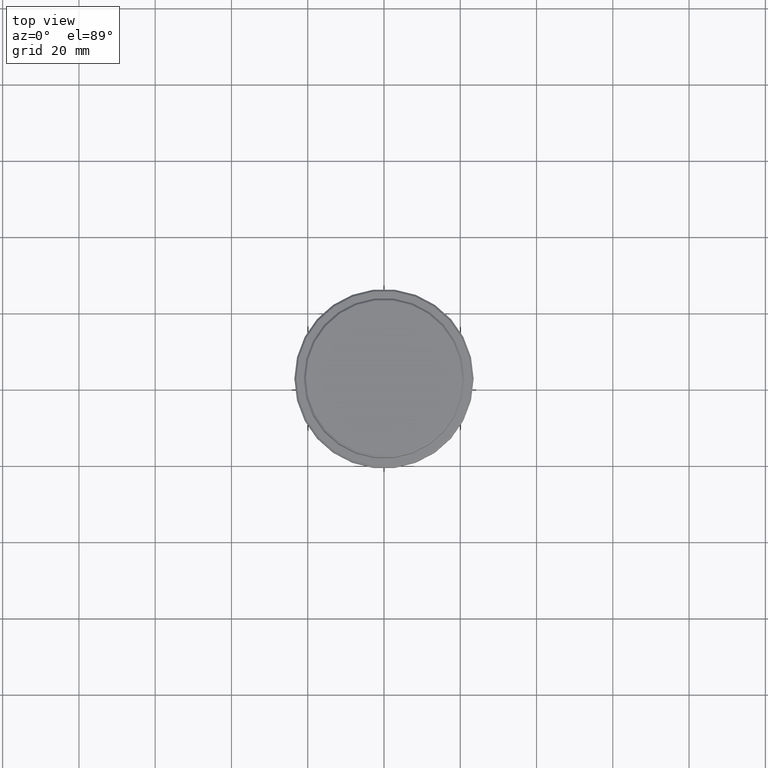
[diagram: clean part render]
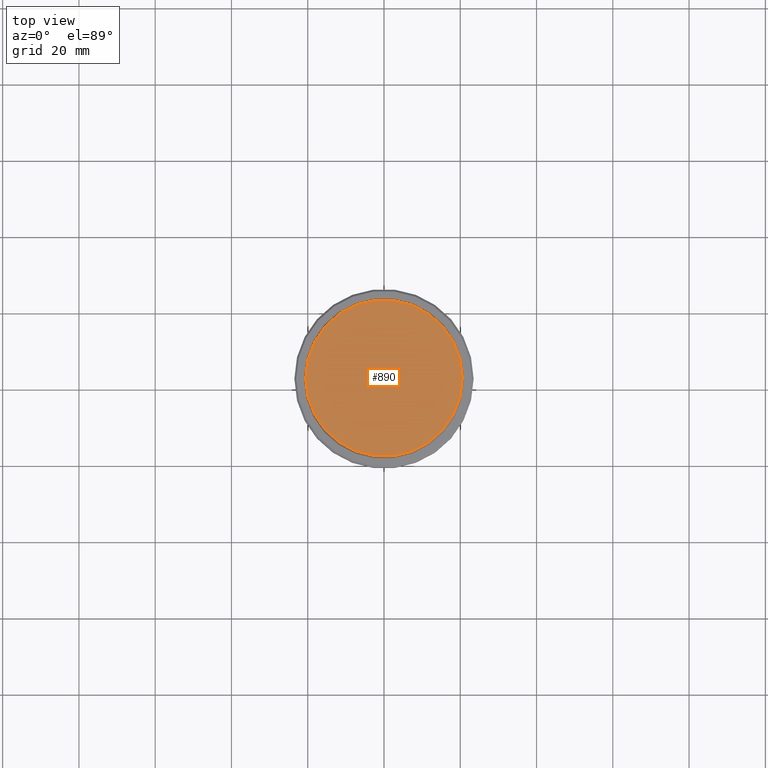
[diagram: same view with one face highlighted and labeled with its STEP entity id]
A machine part, top view. The second image highlights one B-rep face of the part: STEP entity #890.
In plain terms, the highlighted planar face has unit normal (0, -0, 1).
Its self-contained STEP definition (entity closure, byte-faithful):
#19 = EDGE_LOOP ( 'NONE', ( #863, #750 ) ) ;
#134 = AXIS2_PLACEMENT_3D ( 'NONE', #920, #1272, #499 ) ;
#219 = VERTEX_POINT ( 'NONE', #1398 ) ;
#347 = PLANE ( 'NONE',  #1102 ) ;
#486 = DIRECTION ( 'NONE',  ( 1.000000000000000000, 0.000000000000000000, 0.000000000000000000 ) ) ;
#499 = DIRECTION ( 'NONE',  ( 1.000000000000000000, 0.000000000000000000, 0.000000000000000000 ) ) ;
#560 = DIRECTION ( 'NONE',  ( 0.000000000000000000, -0.000000000000000000, 1.000000000000000000 ) ) ;
#693 = CARTESIAN_POINT ( 'NONE',  ( 0.000000000000000000, 0.000000000000000000, 0.000000000000000000 ) ) ;
#735 = VERTEX_POINT ( 'NONE', #1092 ) ;
#740 = CIRCLE ( 'NONE', #134, 20.49999999999998934 ) ;
#750 = ORIENTED_EDGE ( 'NONE', *, *, #1348, .T. ) ;
#779 = DIRECTION ( 'NONE',  ( 1.000000000000000000, 0.000000000000000000, 0.000000000000000000 ) ) ;
#830 = CIRCLE ( 'NONE', #949, 20.49999999999998934 ) ;
#863 = ORIENTED_EDGE ( 'NONE', *, *, #983, .T. ) ;
#890 = ADVANCED_FACE ( 'NONE', ( #1247 ), #347, .T. ) ;
#920 = CARTESIAN_POINT ( 'NONE',  ( 0.000000000000000000, 0.000000000000000000, 0.000000000000000000 ) ) ;
#949 = AXIS2_PLACEMENT_3D ( 'NONE', #1254, #1380, #486 ) ;
#983 = EDGE_CURVE ( 'NONE', #219, #735, #740, .T. ) ;
#1092 = CARTESIAN_POINT ( 'NONE',  ( 20.49999999999998934, 2.541142108230757480E-15, 0.000000000000000000 ) ) ;
#1102 = AXIS2_PLACEMENT_3D ( 'NONE', #693, #560, #779 ) ;
#1247 = FACE_OUTER_BOUND ( 'NONE', #19, .T. ) ;
#1254 = CARTESIAN_POINT ( 'NONE',  ( 0.000000000000000000, 0.000000000000000000, 0.000000000000000000 ) ) ;
#1272 = DIRECTION ( 'NONE',  ( -0.000000000000000000, -0.000000000000000000, 1.000000000000000000 ) ) ;
#1348 = EDGE_CURVE ( 'NONE', #735, #219, #830, .T. ) ;
#1380 = DIRECTION ( 'NONE',  ( -0.000000000000000000, -0.000000000000000000, 1.000000000000000000 ) ) ;
#1398 = CARTESIAN_POINT ( 'NONE',  ( -20.49999999999998934, 0.000000000000000000, 0.000000000000000000 ) ) ;